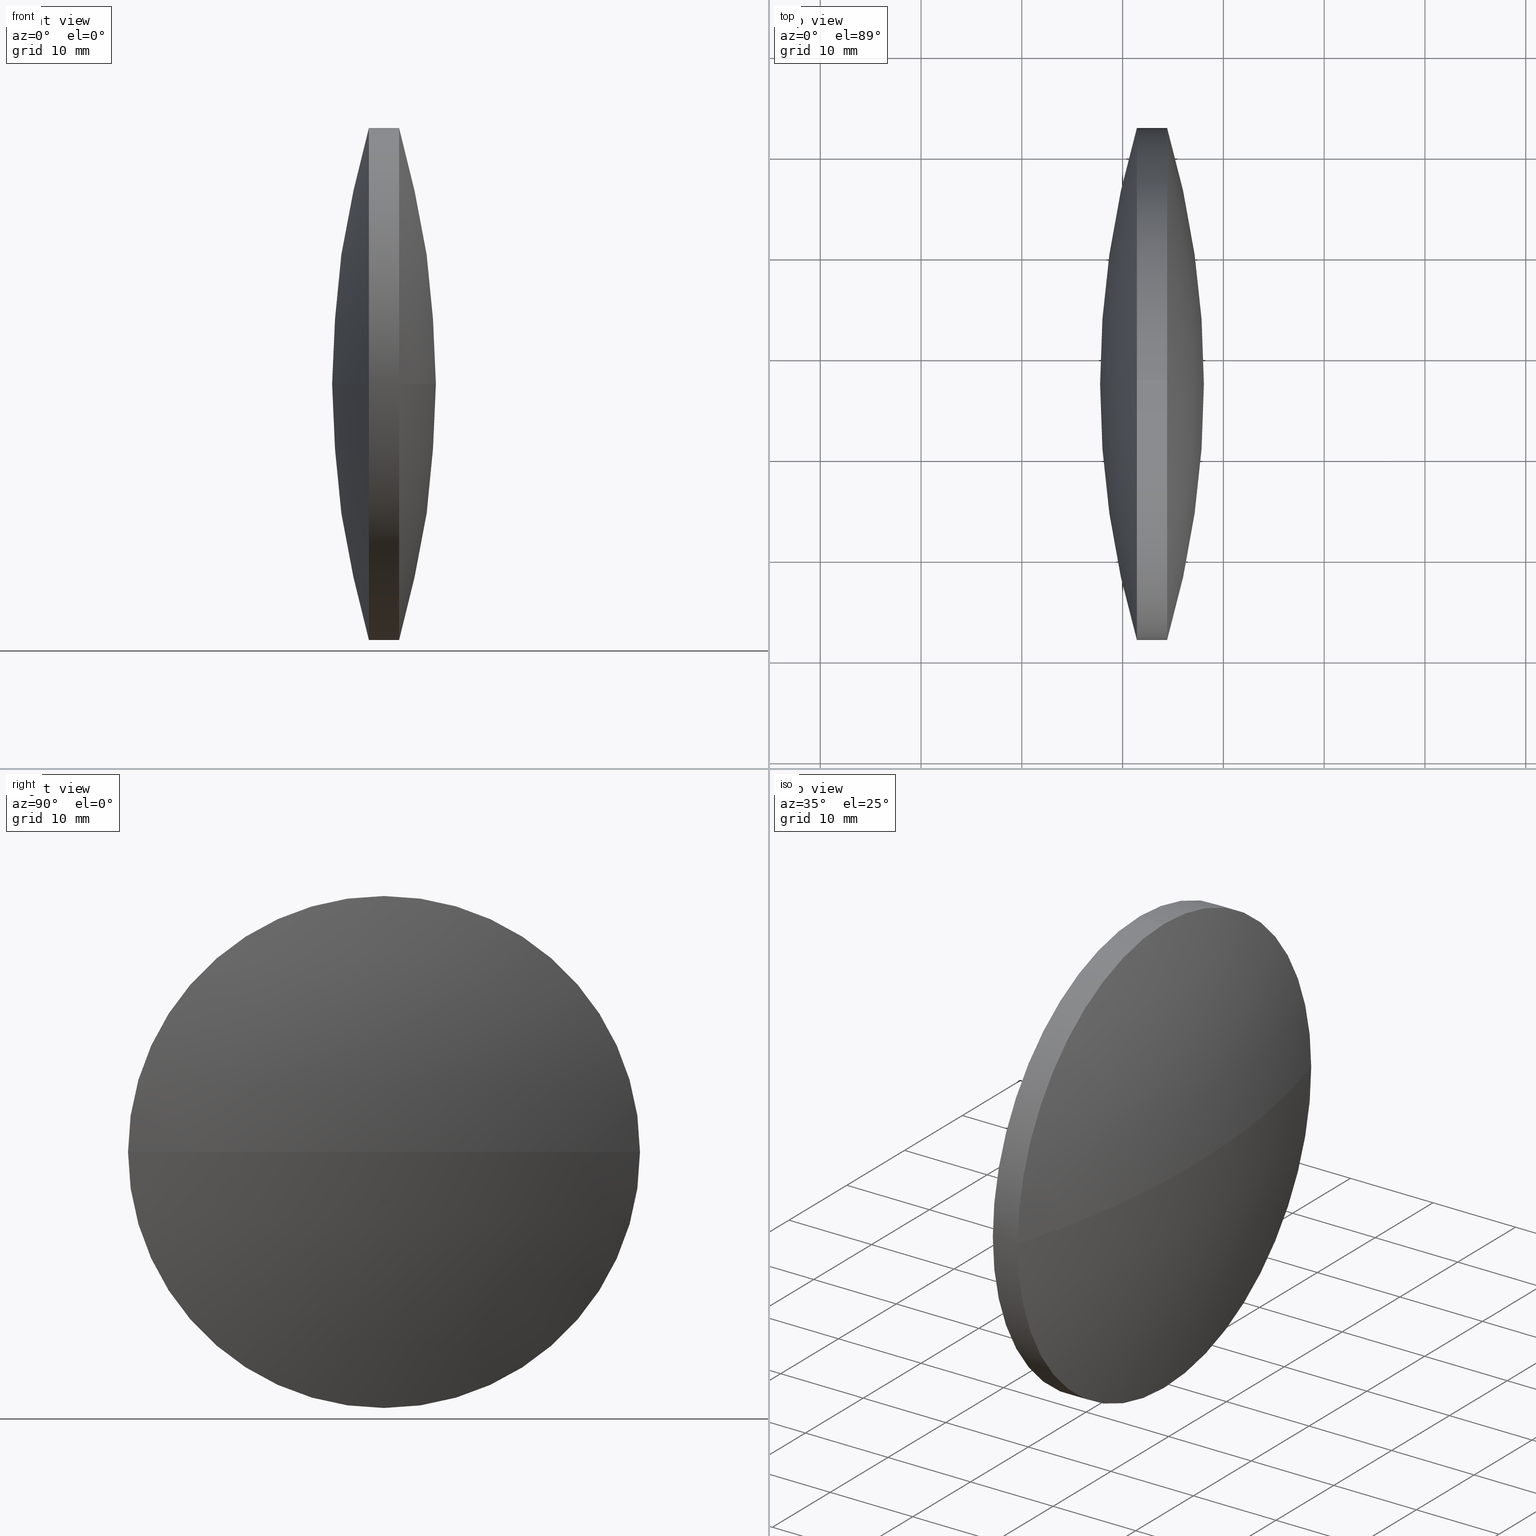
[diagram: canonical four-view strip — front | top / right | iso, engineering-drawing reading convention]
A machine part, canonical four-view strip (front | top / right | iso — engineering-drawing reading convention). The complete STEP part file that produces these views, byte-faithful:
ISO-10303-21;
HEADER;
FILE_DESCRIPTION (( 'STEP AP203' ),
    '1' );
FILE_NAME ('110105.STEP',
    '2019-07-08T07:56:33',
    ( '' ),
    ( '' ),
    'SwSTEP 2.0',
    'SolidWorks 2016',
    '' );
FILE_SCHEMA (( 'CONFIG_CONTROL_DESIGN' ));
ENDSEC;

DATA;
#1 = EDGE_CURVE ( 'NONE', #173, #148, #34, .T. ) ;
#2 = ORIENTED_EDGE ( 'NONE', *, *, #204, .F. ) ;
#3 = PERSON_AND_ORGANIZATION ( #302, #276 ) ;
#4 = ORIENTED_EDGE ( 'NONE', *, *, #215, .T. ) ;
#5 = AXIS2_PLACEMENT_3D ( 'NONE', #263, #166, #286 ) ;
#6 = DATE_AND_TIME ( #53, #224 ) ;
#7 = DIRECTION ( 'NONE',  ( 0.0000000000000000000, 1.000000000000000000, 1.224646799147353200E-016 ) ) ;
#8 = CARTESIAN_POINT ( 'NONE',  ( 87.86368668460100700, 97.23222604636862300, 0.0000000000000000000 ) ) ;
#9 = CALENDAR_DATE ( 2019, 8, 7 ) ;
#10 = VERTEX_POINT ( 'NONE', #32 ) ;
#11 = DIRECTION ( 'NONE',  ( 1.000000000000000000, 0.0000000000000000000, 0.0000000000000000000 ) ) ;
#12 = AXIS2_PLACEMENT_3D ( 'NONE', #8, #211, #11 ) ;
#13 = CARTESIAN_POINT ( 'NONE',  ( 174.4163664064679700, 122.6322260463691000, 0.0000000000000000000 ) ) ;
#14 = CARTESIAN_POINT ( 'NONE',  ( 174.4163664064679400, 97.23222604636956100, 0.0000000000000000000 ) ) ;
#15 = EDGE_CURVE ( 'NONE', #173, #83, #143, .T. ) ;
#16 = CC_DESIGN_APPROVAL ( #135, ( #241 ) ) ;
#17 = FACE_OUTER_BOUND ( 'NONE', #57, .T. ) ;
#18 = PERSON_AND_ORGANIZATION_ROLE ( 'creator' ) ;
#19 = APPROVAL_ROLE ( '' ) ;
#20 = MANIFOLD_SOLID_BREP ( '��ת1', #94 ) ;
#21 = PERSON_AND_ORGANIZATION_ROLE ( 'classification_officer' ) ;
#22 = ORIENTED_EDGE ( 'NONE', *, *, #45, .F. ) ;
#23 = CC_DESIGN_APPROVAL ( #61, ( #185 ) ) ;
#24 = APPROVAL_STATUS ( 'not_yet_approved' ) ;
#25 = ADVANCED_FACE ( 'NONE', ( #210 ), #47, .T. ) ;
#26 = CC_DESIGN_PERSON_AND_ORGANIZATION_ASSIGNMENT ( #162, #73, ( #153 ) ) ;
#27 = PERSON_AND_ORGANIZATION ( #302, #276 ) ;
#28 = LOCAL_TIME ( 15, 56, 33.00000000000000000, #108 ) ;
#29 = VERTEX_POINT ( 'NONE', #301 ) ;
#30 = DIRECTION ( 'NONE',  ( 0.0000000000000000000, 1.000000000000000000, 0.0000000000000000000 ) ) ;
#31 = PRODUCT_DEFINITION ( 'δ֪', '', #220, #129 ) ;
#32 = CARTESIAN_POINT ( 'NONE',  ( 174.4163664064679400, 97.23222604636956100, -25.39999999999999100 ) ) ;
#33 = CALENDAR_DATE ( 2019, 8, 7 ) ;
#34 = CIRCLE ( 'NONE', #112, 25.39999999999999100 ) ;
#35 = DIRECTION ( 'NONE',  ( 0.0000000000000000000, 0.0000000000000000000, 1.000000000000000000 ) ) ;
#36 = ORIENTED_EDGE ( 'NONE', *, *, #1, .F. ) ;
#37 = CALENDAR_DATE ( 2019, 8, 7 ) ;
#38 = DATE_AND_TIME ( #213, #85 ) ;
#39 = PRODUCT_RELATED_PRODUCT_CATEGORY ( 'detail', '', ( #153 ) ) ;
#40 = CARTESIAN_POINT ( 'NONE',  ( 167.7663924064679600, 97.23222604636956100, 0.0000000000000000000 ) ) ;
#41 = CARTESIAN_POINT ( 'NONE',  ( 171.4164086921822200, 97.23222604636956100, 0.0000000000000000000 ) ) ;
#42 = CC_DESIGN_PERSON_AND_ORGANIZATION_ASSIGNMENT ( #252, #318, ( #185 ) ) ;
#43 = APPLICATION_CONTEXT ( 'configuration controlled 3d designs of mechanical parts and assemblies' ) ;
#44 = APPLICATION_PROTOCOL_DEFINITION ( 'international standard', 'config_control_design', 1994, #212 ) ;
#45 = EDGE_CURVE ( 'NONE', #338, #29, #59, .T. ) ;
#46 = SHAPE_DEFINITION_REPRESENTATION ( #248, #183 ) ;
#47 = SPHERICAL_SURFACE ( 'NONE', #179, 90.20269600758102500 ) ;
#48 = CC_DESIGN_PERSON_AND_ORGANIZATION_ASSIGNMENT ( #195, #192, ( #220 ) ) ;
#49 = COORDINATED_UNIVERSAL_TIME_OFFSET ( 8, 0, .AHEAD. ) ;
#50 = ORIENTED_EDGE ( 'NONE', *, *, #81, .T. ) ;
#51 = SECURITY_CLASSIFICATION_LEVEL ( 'unclassified' ) ;
#52 = APPLICATION_PROTOCOL_DEFINITION ( 'international standard', 'config_control_design', 1994, #284 ) ;
#53 = CALENDAR_DATE ( 2019, 8, 7 ) ;
#54 = SECURITY_CLASSIFICATION ( '', '', #51 ) ;
#55 = APPROVAL ( #221, 'δָ��' ) ;
#56 = DIRECTION ( 'NONE',  ( -1.000000000000000000, -0.0000000000000000000, -0.0000000000000000000 ) ) ;
#57 = EDGE_LOOP ( 'NONE', ( #74, #4, #175, #216 ) ) ;
#58 = LOCAL_TIME ( 15, 56, 33.00000000000000000, #66 ) ;
#59 = CIRCLE ( 'NONE', #283, 25.39999999999999100 ) ;
#60 = EDGE_CURVE ( 'NONE', #106, #165, #170, .T. ) ;
#61 = APPROVAL ( #287, 'δָ��' ) ;
#62 = CARTESIAN_POINT ( 'NONE',  ( 171.4164086921822200, 97.23222604636956100, 25.39999999999999100 ) ) ;
#63 = DIRECTION ( 'NONE',  ( 0.0000000000000000000, 1.000000000000000000, 0.0000000000000000000 ) ) ;
#64 = DIRECTION ( 'NONE',  ( 0.0000000000000000000, 1.224646799147353200E-016, -1.000000000000000000 ) ) ;
#65 = ORIENTED_EDGE ( 'NONE', *, *, #254, .T. ) ;
#66 = COORDINATED_UNIVERSAL_TIME_OFFSET ( 8, 0, .AHEAD. ) ;
#67 = ORIENTED_EDGE ( 'NONE', *, *, #15, .F. ) ;
#68 =( GEOMETRIC_REPRESENTATION_CONTEXT ( 3 ) GLOBAL_UNCERTAINTY_ASSIGNED_CONTEXT ( ( #111 ) ) GLOBAL_UNIT_ASSIGNED_CONTEXT ( ( #163, #186, #259 ) ) REPRESENTATION_CONTEXT ( 'NONE', 'WORKASPACE' ) );
#69 = DIRECTION ( 'NONE',  ( 0.0000000000000000000, 0.0000000000000000000, 1.000000000000000000 ) ) ;
#70 = CARTESIAN_POINT ( 'NONE',  ( 0.0000000000000000000, 0.0000000000000000000, 0.0000000000000000000 ) ) ;
#71 = PERSON_AND_ORGANIZATION ( #302, #276 ) ;
#72 = CARTESIAN_POINT ( 'NONE',  ( 174.4163664064679400, 97.23222604636956100, 0.0000000000000000000 ) ) ;
#73 = PERSON_AND_ORGANIZATION_ROLE ( 'design_owner' ) ;
#74 = ORIENTED_EDGE ( 'NONE', *, *, #254, .F. ) ;
#75 = CC_DESIGN_APPROVAL ( #55, ( #31 ) ) ;
#76 = APPROVAL ( #339, 'δָ��' ) ;
#77 = APPROVAL_ROLE ( '' ) ;
#78 = ADVANCED_FACE ( 'NONE', ( #267 ), #322, .T. ) ;
#79 = AXIS2_PLACEMENT_3D ( 'NONE', #304, #154, #305 ) ;
#80 = DATE_TIME_ROLE ( 'classification_date' ) ;
#81 = EDGE_CURVE ( 'NONE', #106, #338, #317, .T. ) ;
#82 = EDGE_CURVE ( 'NONE', #10, #338, #280, .T. ) ;
#83 = VERTEX_POINT ( 'NONE', #62 ) ;
#84 = DATE_AND_TIME ( #33, #138 ) ;
#85 = LOCAL_TIME ( 15, 56, 33.00000000000000000, #256 ) ;
#86 = FACE_OUTER_BOUND ( 'NONE', #272, .T. ) ;
#87 = DIRECTION ( 'NONE',  ( -0.0000000000000000000, 0.0000000000000000000, -1.000000000000000000 ) ) ;
#88 = CC_DESIGN_DATE_AND_TIME_ASSIGNMENT ( #140, #222, ( #241 ) ) ;
#89 = DIRECTION ( 'NONE',  ( 0.0000000000000000000, 1.000000000000000000, 0.0000000000000000000 ) ) ;
#90 = DIRECTION ( 'NONE',  ( 0.0000000000000000000, 0.0000000000000000000, 1.000000000000000000 ) ) ;
#91 = PRODUCT_DEFINITION_SHAPE ( 'NONE', 'NONE',  #185 ) ;
#92 = CARTESIAN_POINT ( 'NONE',  ( 174.4163664064679400, 97.23222604636956100, 25.39999999999999100 ) ) ;
#93 = CC_DESIGN_APPROVAL ( #234, ( #220 ) ) ;
#94 = CLOSED_SHELL ( 'NONE', ( #297, #25, #78, #172, #296, #244 ) ) ;
#95 = PERSON_AND_ORGANIZATION ( #302, #276 ) ;
#96 = DATE_AND_TIME ( #158, #28 ) ;
#97 = VECTOR ( 'NONE', #200, 1000.000000000000000 ) ;
#98 = AXIS2_PLACEMENT_3D ( 'NONE', #326, #250, #89 ) ;
#99 = CARTESIAN_POINT ( 'NONE',  ( 165.7441079421506900, 97.23222604636956100, 0.0000000000000000000 ) ) ;
#100 = DIRECTION ( 'NONE',  ( -1.000000000000000000, -0.0000000000000000000, -0.0000000000000000000 ) ) ;
#101 = DIRECTION ( 'NONE',  ( 0.0000000000000000000, 0.0000000000000000000, 1.000000000000000000 ) ) ;
#102 = ORIENTED_EDGE ( 'NONE', *, *, #208, .F. ) ;
#103 = EDGE_CURVE ( 'NONE', #142, #173, #202, .T. ) ;
#104 = CARTESIAN_POINT ( 'NONE',  ( 165.7441079421506900, 97.23222604636956100, 0.0000000000000000000 ) ) ;
#105 = DIRECTION ( 'NONE',  ( 0.0000000000000000000, 0.0000000000000000000, 1.000000000000000000 ) ) ;
#106 = VERTEX_POINT ( 'NONE', #151 ) ;
#107 = COORDINATED_UNIVERSAL_TIME_OFFSET ( 8, 0, .AHEAD. ) ;
#108 = COORDINATED_UNIVERSAL_TIME_OFFSET ( 8, 0, .AHEAD. ) ;
#109 = ORIENTED_EDGE ( 'NONE', *, *, #268, .F. ) ;
#110 = MECHANICAL_CONTEXT ( 'NONE', #212, 'mechanical' ) ;
#111 = UNCERTAINTY_MEASURE_WITH_UNIT (LENGTH_MEASURE( 1.000000000000000100E-005 ), #163, 'distance_accuracy_value', 'NONE');
#112 = AXIS2_PLACEMENT_3D ( 'NONE', #178, #275, #120 ) ;
#113 = APPROVAL_STATUS ( 'not_yet_approved' ) ;
#114 = ORIENTED_EDGE ( 'NONE', *, *, #204, .T. ) ;
#115 = APPLICATION_CONTEXT ( 'configuration controlled 3d designs of mechanical parts and assemblies' ) ;
#116 = APPROVAL_PERSON_ORGANIZATION ( #273, #61, #188 ) ;
#117 = CIRCLE ( 'NONE', #159, 25.39999999999999100 ) ;
#118 = AXIS2_PLACEMENT_3D ( 'NONE', #72, #260, #105 ) ;
#119 = PRODUCT ( '110105', '110105', '', ( #344 ) ) ;
#120 = DIRECTION ( 'NONE',  ( 0.0000000000000000000, 0.0000000000000000000, 1.000000000000000000 ) ) ;
#121 = CC_DESIGN_SECURITY_CLASSIFICATION ( #54, ( #220 ) ) ;
#122 = CARTESIAN_POINT ( 'NONE',  ( 165.7441079421506900, 97.23222604636956100, 25.39999999999999100 ) ) ;
#123 = AXIS2_PLACEMENT_3D ( 'NONE', #156, #64, #164 ) ;
#124 = DATE_AND_TIME ( #37, #205 ) ;
#125 = COORDINATED_UNIVERSAL_TIME_OFFSET ( 8, 0, .AHEAD. ) ;
#126 = AXIS2_PLACEMENT_3D ( 'NONE', #255, #306, #330 ) ;
#127 = CARTESIAN_POINT ( 'NONE',  ( 178.0663826921820600, 97.23222604636862300, 0.0000000000000000000 ) ) ;
#128 = FACE_OUTER_BOUND ( 'NONE', #298, .T. ) ;
#129 = DESIGN_CONTEXT ( 'detailed design', #115, 'design' ) ;
#130 = DIRECTION ( 'NONE',  ( -1.000000000000000000, -0.0000000000000000000, -0.0000000000000000000 ) ) ;
#131 = CC_DESIGN_PERSON_AND_ORGANIZATION_ASSIGNMENT ( #27, #168, ( #54 ) ) ;
#132 = CARTESIAN_POINT ( 'NONE',  ( 171.4164086921822200, 97.23222604636956100, 0.0000000000000000000 ) ) ;
#133 = COORDINATED_UNIVERSAL_TIME_OFFSET ( 8, 0, .AHEAD. ) ;
#134 = ORIENTED_EDGE ( 'NONE', *, *, #292, .F. ) ;
#135 = APPROVAL ( #24, 'δָ��' ) ;
#136 = DIRECTION ( 'NONE',  ( 0.0000000000000000000, 0.0000000000000000000, 1.000000000000000000 ) ) ;
#137 = DIRECTION ( 'NONE',  ( 0.0000000000000000000, 1.000000000000000000, 0.0000000000000000000 ) ) ;
#138 = LOCAL_TIME ( 15, 56, 33.00000000000000000, #107 ) ;
#139 = DIRECTION ( 'NONE',  ( -0.0000000000000000000, 0.0000000000000000000, -1.000000000000000000 ) ) ;
#140 = DATE_AND_TIME ( #9, #206 ) ;
#141 = CC_DESIGN_PERSON_AND_ORGANIZATION_ASSIGNMENT ( #71, #219, ( #31 ) ) ;
#142 = VERTEX_POINT ( 'NONE', #182 ) ;
#143 = LINE ( 'NONE', #122, #97 ) ;
#144 = CC_DESIGN_DATE_AND_TIME_ASSIGNMENT ( #124, #80, ( #54 ) ) ;
#145 = COORDINATED_UNIVERSAL_TIME_OFFSET ( 8, 0, .AHEAD. ) ;
#146 = CALENDAR_DATE ( 2019, 8, 7 ) ;
#147 = CC_DESIGN_DATE_AND_TIME_ASSIGNMENT ( #196, #269, ( #185 ) ) ;
#148 = VERTEX_POINT ( 'NONE', #13 ) ;
#149 = APPROVAL_PERSON_ORGANIZATION ( #313, #55, #191 ) ;
#150 = CIRCLE ( 'NONE', #12, 90.20269600758103900 ) ;
#151 = CARTESIAN_POINT ( 'NONE',  ( 171.4164086921822200, 122.6322260463695200, 0.0000000000000000000 ) ) ;
#152 = EDGE_CURVE ( 'NONE', #83, #106, #217, .T. ) ;
#153 = PRODUCT ( '110105', '110105', '', ( #110 ) ) ;
#154 = DIRECTION ( 'NONE',  ( -0.0000000000000000000, 0.0000000000000000000, 1.000000000000000000 ) ) ;
#155 = DATE_AND_TIME ( #308, #189 ) ;
#156 = CARTESIAN_POINT ( 'NONE',  ( 257.9690884140448500, 97.23222604636956100, 0.0000000000000000000 ) ) ;
#157 = ORIENTED_EDGE ( 'NONE', *, *, #60, .F. ) ;
#158 = CALENDAR_DATE ( 2019, 8, 7 ) ;
#159 = AXIS2_PLACEMENT_3D ( 'NONE', #14, #214, #336 ) ;
#160 = ORIENTED_EDGE ( 'NONE', *, *, #292, .T. ) ;
#161 = DIRECTION ( 'NONE',  ( 0.0000000000000000000, 0.0000000000000000000, 1.000000000000000000 ) ) ;
#162 = PERSON_AND_ORGANIZATION ( #302, #276 ) ;
#163 =( LENGTH_UNIT ( ) NAMED_UNIT ( * ) SI_UNIT ( .MILLI., .METRE. ) );
#164 = DIRECTION ( 'NONE',  ( 0.0000000000000000000, 1.000000000000000000, 1.224646799147353500E-016 ) ) ;
#165 = VERTEX_POINT ( 'NONE', #40 ) ;
#166 = DIRECTION ( 'NONE',  ( 0.0000000000000000000, 0.0000000000000000000, 1.000000000000000000 ) ) ;
#167 = CIRCLE ( 'NONE', #123, 90.20269600757689000 ) ;
#168 = PERSON_AND_ORGANIZATION_ROLE ( 'classification_officer' ) ;
#169 = APPROVAL_STATUS ( 'not_yet_approved' ) ;
#170 = CIRCLE ( 'NONE', #79, 90.20269600757690400 ) ;
#171 = DATE_TIME_ROLE ( 'creation_date' ) ;
#172 = ADVANCED_FACE ( 'NONE', ( #17 ), #253, .T. ) ;
#173 = VERTEX_POINT ( 'NONE', #92 ) ;
#174 = PERSON_AND_ORGANIZATION ( #302, #276 ) ;
#175 = ORIENTED_EDGE ( 'NONE', *, *, #152, .T. ) ;
#176 = AXIS2_PLACEMENT_3D ( 'NONE', #70, #101, #236 ) ;
#177 = EDGE_LOOP ( 'NONE', ( #2, #237, #109, #134 ) ) ;
#178 = CARTESIAN_POINT ( 'NONE',  ( 174.4163664064679400, 97.23222604636956100, 0.0000000000000000000 ) ) ;
#179 = AXIS2_PLACEMENT_3D ( 'NONE', #247, #87, #30 ) ;
#180 = APPROVAL_DATE_TIME ( #155, #55 ) ;
#181 = ORIENTED_EDGE ( 'NONE', *, *, #45, .T. ) ;
#182 = CARTESIAN_POINT ( 'NONE',  ( 174.4163664064679700, 71.83222604636908700, -3.110602869834220900E-015 ) ) ;
#183 = ADVANCED_BREP_SHAPE_REPRESENTATION ( '110105', ( #20, #5 ), #68 ) ;
#184 = DIRECTION ( 'NONE',  ( -0.0000000000000000000, 0.0000000000000000000, -1.000000000000000000 ) ) ;
#185 = PRODUCT_DEFINITION ( 'δ֪', '', #246, #243 ) ;
#186 =( NAMED_UNIT ( * ) PLANE_ANGLE_UNIT ( ) SI_UNIT ( $, .RADIAN. ) );
#187 = CIRCLE ( 'NONE', #118, 25.39999999999999100 ) ;
#188 = APPROVAL_ROLE ( '' ) ;
#189 = LOCAL_TIME ( 15, 56, 33.00000000000000000, #209 ) ;
#190 = AXIS2_PLACEMENT_3D ( 'NONE', #233, #207, #69 ) ;
#191 = APPROVAL_ROLE ( '' ) ;
#192 = PERSON_AND_ORGANIZATION_ROLE ( 'design_supplier' ) ;
#193 = VECTOR ( 'NONE', #311, 1000.000000000000000 ) ;
#194 = PERSON_AND_ORGANIZATION_ROLE ( 'design_owner' ) ;
#195 = PERSON_AND_ORGANIZATION ( #302, #276 ) ;
#196 = DATE_AND_TIME ( #146, #239 ) ;
#197 = EDGE_LOOP ( 'NONE', ( #50, #181, #65, #157 ) ) ;
#198 = AXIS2_PLACEMENT_3D ( 'NONE', #104, #315, #265 ) ;
#199 = ORIENTED_EDGE ( 'NONE', *, *, #81, .F. ) ;
#200 = DIRECTION ( 'NONE',  ( -1.000000000000000000, -0.0000000000000000000, -0.0000000000000000000 ) ) ;
#201 = APPROVAL_DATE_TIME ( #6, #135 ) ;
#202 = CIRCLE ( 'NONE', #126, 25.39999999999999100 ) ;
#203 = CC_DESIGN_DATE_AND_TIME_ASSIGNMENT ( #96, #171, ( #31 ) ) ;
#204 = EDGE_CURVE ( 'NONE', #266, #148, #150, .T. ) ;
#205 = LOCAL_TIME ( 15, 56, 33.00000000000000000, #145 ) ;
#206 = LOCAL_TIME ( 15, 56, 33.00000000000000000, #125 ) ;
#207 = DIRECTION ( 'NONE',  ( -1.000000000000000000, -0.0000000000000000000, -0.0000000000000000000 ) ) ;
#208 = EDGE_CURVE ( 'NONE', #266, #142, #258, .T. ) ;
#209 = COORDINATED_UNIVERSAL_TIME_OFFSET ( 8, 0, .AHEAD. ) ;
#210 = FACE_OUTER_BOUND ( 'NONE', #177, .T. ) ;
#211 = DIRECTION ( 'NONE',  ( -0.0000000000000000000, 0.0000000000000000000, 1.000000000000000000 ) ) ;
#212 = APPLICATION_CONTEXT ( 'configuration controlled 3d designs of mechanical parts and assemblies' ) ;
#213 = CALENDAR_DATE ( 2019, 8, 7 ) ;
#214 = DIRECTION ( 'NONE',  ( -1.000000000000000000, -0.0000000000000000000, -0.0000000000000000000 ) ) ;
#215 = EDGE_CURVE ( 'NONE', #29, #83, #341, .T. ) ;
#216 = ORIENTED_EDGE ( 'NONE', *, *, #60, .T. ) ;
#217 = CIRCLE ( 'NONE', #310, 25.39999999999999100 ) ;
#218 = APPROVAL_ROLE ( '' ) ;
#219 = PERSON_AND_ORGANIZATION_ROLE ( 'creator' ) ;
#220 = PRODUCT_DEFINITION_FORMATION_WITH_SPECIFIED_SOURCE ( '�κ�', '', #119, .NOT_KNOWN. ) ;
#221 = APPROVAL_STATUS ( 'not_yet_approved' ) ;
#222 = DATE_TIME_ROLE ( 'classification_date' ) ;
#223 = PERSON_AND_ORGANIZATION ( #302, #276 ) ;
#224 = LOCAL_TIME ( 15, 56, 33.00000000000000000, #49 ) ;
#225 = CARTESIAN_POINT ( 'NONE',  ( 171.4164086921822200, 97.23222604636956100, 0.0000000000000000000 ) ) ;
#226 = APPROVAL ( #169, 'δָ��' ) ;
#227 = COORDINATED_UNIVERSAL_TIME_OFFSET ( 8, 0, .AHEAD. ) ;
#228 = CARTESIAN_POINT ( 'NONE',  ( 165.7441079421506900, 97.23222604636956100, -25.39999999999999100 ) ) ;
#229 = DIRECTION ( 'NONE',  ( -1.000000000000000000, -0.0000000000000000000, -0.0000000000000000000 ) ) ;
#230 = ORIENTED_EDGE ( 'NONE', *, *, #152, .F. ) ;
#231 = LOCAL_TIME ( 15, 56, 33.00000000000000000, #227 ) ;
#232 = CYLINDRICAL_SURFACE ( 'NONE', #319, 25.39999999999999100 ) ;
#233 = CARTESIAN_POINT ( 'NONE',  ( 171.4164086921822200, 97.23222604636956100, 0.0000000000000000000 ) ) ;
#234 = APPROVAL ( #113, 'δָ��' ) ;
#235 = ORIENTED_EDGE ( 'NONE', *, *, #82, .F. ) ;
#236 = DIRECTION ( 'NONE',  ( 1.000000000000000000, 0.0000000000000000000, 0.0000000000000000000 ) ) ;
#237 = ORIENTED_EDGE ( 'NONE', *, *, #208, .T. ) ;
#238 = APPROVAL_DATE_TIME ( #84, #76 ) ;
#239 = LOCAL_TIME ( 15, 56, 33.00000000000000000, #133 ) ;
#240 = ORIENTED_EDGE ( 'NONE', *, *, #103, .F. ) ;
#241 = SECURITY_CLASSIFICATION ( '', '', #320 ) ;
#242 = EDGE_LOOP ( 'NONE', ( #235, #314, #307, #332, #290, #22 ) ) ;
#243 = DESIGN_CONTEXT ( 'detailed design', #43, 'design' ) ;
#244 = ADVANCED_FACE ( 'NONE', ( #325 ), #232, .T. ) ;
#245 = PERSON_AND_ORGANIZATION ( #302, #276 ) ;
#246 = PRODUCT_DEFINITION_FORMATION_WITH_SPECIFIED_SOURCE ( '�κ�', '', #153, .NOT_KNOWN. ) ;
#247 = CARTESIAN_POINT ( 'NONE',  ( 87.86368668460100700, 97.23222604636862300, 0.0000000000000000000 ) ) ;
#248 = PRODUCT_DEFINITION_SHAPE ( 'NONE', 'NONE',  #31 ) ;
#249 = CYLINDRICAL_SURFACE ( 'NONE', #198, 25.39999999999999100 ) ;
#250 = DIRECTION ( 'NONE',  ( -0.0000000000000000000, 0.0000000000000000000, -1.000000000000000000 ) ) ;
#251 = AXIS2_PLACEMENT_3D ( 'NONE', #333, #184, #63 ) ;
#252 = PERSON_AND_ORGANIZATION ( #302, #276 ) ;
#253 = SPHERICAL_SURFACE ( 'NONE', #251, 90.20269600757690400 ) ;
#254 = EDGE_CURVE ( 'NONE', #29, #165, #167, .T. ) ;
#255 = CARTESIAN_POINT ( 'NONE',  ( 174.4163664064679400, 97.23222604636956100, 0.0000000000000000000 ) ) ;
#256 = COORDINATED_UNIVERSAL_TIME_OFFSET ( 8, 0, .AHEAD. ) ;
#257 = DIRECTION ( 'NONE',  ( 0.0000000000000000000, 1.224646799147353200E-016, -1.000000000000000000 ) ) ;
#258 = CIRCLE ( 'NONE', #303, 90.20269600758102500 ) ;
#259 =( NAMED_UNIT ( * ) SI_UNIT ( $, .STERADIAN. ) SOLID_ANGLE_UNIT ( ) );
#260 = DIRECTION ( 'NONE',  ( -1.000000000000000000, -0.0000000000000000000, -0.0000000000000000000 ) ) ;
#261 = DATE_AND_TIME ( #331, #58 ) ;
#262 = PERSON_AND_ORGANIZATION ( #302, #276 ) ;
#263 = CARTESIAN_POINT ( 'NONE',  ( 0.0000000000000000000, 0.0000000000000000000, 0.0000000000000000000 ) ) ;
#264 = CC_DESIGN_APPROVAL ( #226, ( #246 ) ) ;
#265 = DIRECTION ( 'NONE',  ( 0.0000000000000000000, 0.0000000000000000000, 1.000000000000000000 ) ) ;
#266 = VERTEX_POINT ( 'NONE', #127 ) ;
#267 = FACE_OUTER_BOUND ( 'NONE', #197, .T. ) ;
#268 = EDGE_CURVE ( 'NONE', #10, #142, #117, .T. ) ;
#269 = DATE_TIME_ROLE ( 'creation_date' ) ;
#270 = APPROVAL_DATE_TIME ( #261, #234 ) ;
#271 = CALENDAR_DATE ( 2019, 8, 7 ) ;
#272 = EDGE_LOOP ( 'NONE', ( #160, #295, #199, #230, #67, #278 ) ) ;
#273 = PERSON_AND_ORGANIZATION ( #302, #276 ) ;
#274 = CC_DESIGN_PERSON_AND_ORGANIZATION_ASSIGNMENT ( #289, #316, ( #246 ) ) ;
#275 = DIRECTION ( 'NONE',  ( -1.000000000000000000, -0.0000000000000000000, -0.0000000000000000000 ) ) ;
#276 = ORGANIZATION ( 'δָ��', 'δָ��', '' ) ;
#277 = CC_DESIGN_PERSON_AND_ORGANIZATION_ASSIGNMENT ( #340, #343, ( #246 ) ) ;
#278 = ORIENTED_EDGE ( 'NONE', *, *, #1, .T. ) ;
#279 = APPROVAL_PERSON_ORGANIZATION ( #245, #226, #77 ) ;
#280 = LINE ( 'NONE', #228, #193 ) ;
#281 = CARTESIAN_POINT ( 'NONE',  ( 87.86368668460100700, 97.23222604636862300, 0.0000000000000000000 ) ) ;
#282 = CC_DESIGN_PERSON_AND_ORGANIZATION_ASSIGNMENT ( #95, #18, ( #220 ) ) ;
#283 = AXIS2_PLACEMENT_3D ( 'NONE', #225, #56, #90 ) ;
#284 = APPLICATION_CONTEXT ( 'configuration controlled 3d designs of mechanical parts and assemblies' ) ;
#285 = APPROVAL_DATE_TIME ( #38, #61 ) ;
#286 = DIRECTION ( 'NONE',  ( 1.000000000000000000, 0.0000000000000000000, 0.0000000000000000000 ) ) ;
#287 = APPROVAL_STATUS ( 'not_yet_approved' ) ;
#288 = PERSON_AND_ORGANIZATION ( #302, #276 ) ;
#289 = PERSON_AND_ORGANIZATION ( #302, #276 ) ;
#290 = ORIENTED_EDGE ( 'NONE', *, *, #215, .F. ) ;
#291 = APPLICATION_PROTOCOL_DEFINITION ( 'international standard', 'config_control_design', 1994, #115 ) ;
#292 = EDGE_CURVE ( 'NONE', #148, #10, #187, .T. ) ;
#293 = AXIS2_PLACEMENT_3D ( 'NONE', #41, #229, #136 ) ;
#294 = APPROVAL_ROLE ( '' ) ;
#295 = ORIENTED_EDGE ( 'NONE', *, *, #82, .T. ) ;
#296 = ADVANCED_FACE ( 'NONE', ( #128 ), #300, .T. ) ;
#297 = ADVANCED_FACE ( 'NONE', ( #86 ), #249, .T. ) ;
#298 = EDGE_LOOP ( 'NONE', ( #102, #114, #36, #240 ) ) ;
#299 = APPROVAL_PERSON_ORGANIZATION ( #174, #135, #218 ) ;
#300 = SPHERICAL_SURFACE ( 'NONE', #334, 90.20269600758102500 ) ;
#301 = CARTESIAN_POINT ( 'NONE',  ( 171.4164086921822200, 71.83222604636959800, -3.110602869834273300E-015 ) ) ;
#302 = PERSON ( 'δָ��', 'δָ��', 'δָ��', ('δָ��'), ('δָ��'), ('δָ��') ) ;
#303 = AXIS2_PLACEMENT_3D ( 'NONE', #281, #257, #7 ) ;
#304 = CARTESIAN_POINT ( 'NONE',  ( 257.9690884140448500, 97.23222604636956100, 0.0000000000000000000 ) ) ;
#305 = DIRECTION ( 'NONE',  ( 1.000000000000000000, 0.0000000000000000000, 0.0000000000000000000 ) ) ;
#306 = DIRECTION ( 'NONE',  ( -1.000000000000000000, -0.0000000000000000000, -0.0000000000000000000 ) ) ;
#307 = ORIENTED_EDGE ( 'NONE', *, *, #103, .T. ) ;
#308 = CALENDAR_DATE ( 2019, 8, 7 ) ;
#309 = CARTESIAN_POINT ( 'NONE',  ( 87.86368668460100700, 97.23222604636862300, 0.0000000000000000000 ) ) ;
#310 = AXIS2_PLACEMENT_3D ( 'NONE', #132, #100, #161 ) ;
#311 = DIRECTION ( 'NONE',  ( -1.000000000000000000, -0.0000000000000000000, -0.0000000000000000000 ) ) ;
#312 = CARTESIAN_POINT ( 'NONE',  ( 171.4164086921822200, 97.23222604636956100, -25.39999999999999100 ) ) ;
#313 = PERSON_AND_ORGANIZATION ( #302, #276 ) ;
#314 = ORIENTED_EDGE ( 'NONE', *, *, #268, .T. ) ;
#315 = DIRECTION ( 'NONE',  ( -1.000000000000000000, -0.0000000000000000000, -0.0000000000000000000 ) ) ;
#316 = PERSON_AND_ORGANIZATION_ROLE ( 'creator' ) ;
#317 = CIRCLE ( 'NONE', #293, 25.39999999999999100 ) ;
#318 = PERSON_AND_ORGANIZATION_ROLE ( 'creator' ) ;
#319 = AXIS2_PLACEMENT_3D ( 'NONE', #99, #130, #35 ) ;
#320 = SECURITY_CLASSIFICATION_LEVEL ( 'unclassified' ) ;
#321 = APPROVAL_DATE_TIME ( #328, #226 ) ;
#322 = SPHERICAL_SURFACE ( 'NONE', #98, 90.20269600757690400 ) ;
#323 = PRODUCT_RELATED_PRODUCT_CATEGORY ( 'detail', '', ( #119 ) ) ;
#324 = CC_DESIGN_SECURITY_CLASSIFICATION ( #241, ( #246 ) ) ;
#325 = FACE_OUTER_BOUND ( 'NONE', #242, .T. ) ;
#326 = CARTESIAN_POINT ( 'NONE',  ( 257.9690884140448500, 97.23222604636956100, 0.0000000000000000000 ) ) ;
#327 = APPROVAL_PERSON_ORGANIZATION ( #288, #76, #19 ) ;
#328 = DATE_AND_TIME ( #271, #231 ) ;
#329 = CC_DESIGN_PERSON_AND_ORGANIZATION_ASSIGNMENT ( #262, #21, ( #241 ) ) ;
#330 = DIRECTION ( 'NONE',  ( 0.0000000000000000000, 0.0000000000000000000, 1.000000000000000000 ) ) ;
#331 = CALENDAR_DATE ( 2019, 8, 7 ) ;
#332 = ORIENTED_EDGE ( 'NONE', *, *, #15, .T. ) ;
#333 = CARTESIAN_POINT ( 'NONE',  ( 257.9690884140448500, 97.23222604636956100, 0.0000000000000000000 ) ) ;
#334 = AXIS2_PLACEMENT_3D ( 'NONE', #309, #139, #137 ) ;
#335 = APPLICATION_PROTOCOL_DEFINITION ( 'international standard', 'config_control_design', 1994, #43 ) ;
#336 = DIRECTION ( 'NONE',  ( 0.0000000000000000000, 0.0000000000000000000, 1.000000000000000000 ) ) ;
#337 = CC_DESIGN_APPROVAL ( #76, ( #54 ) ) ;
#338 = VERTEX_POINT ( 'NONE', #312 ) ;
#339 = APPROVAL_STATUS ( 'not_yet_approved' ) ;
#340 = PERSON_AND_ORGANIZATION ( #302, #276 ) ;
#341 = CIRCLE ( 'NONE', #190, 25.39999999999999100 ) ;
#342 = CC_DESIGN_PERSON_AND_ORGANIZATION_ASSIGNMENT ( #223, #194, ( #119 ) ) ;
#343 = PERSON_AND_ORGANIZATION_ROLE ( 'design_supplier' ) ;
#344 = MECHANICAL_CONTEXT ( 'NONE', #284, 'mechanical' ) ;
#345 = APPROVAL_PERSON_ORGANIZATION ( #3, #234, #294 ) ;
ENDSEC;
END-ISO-10303-21;
